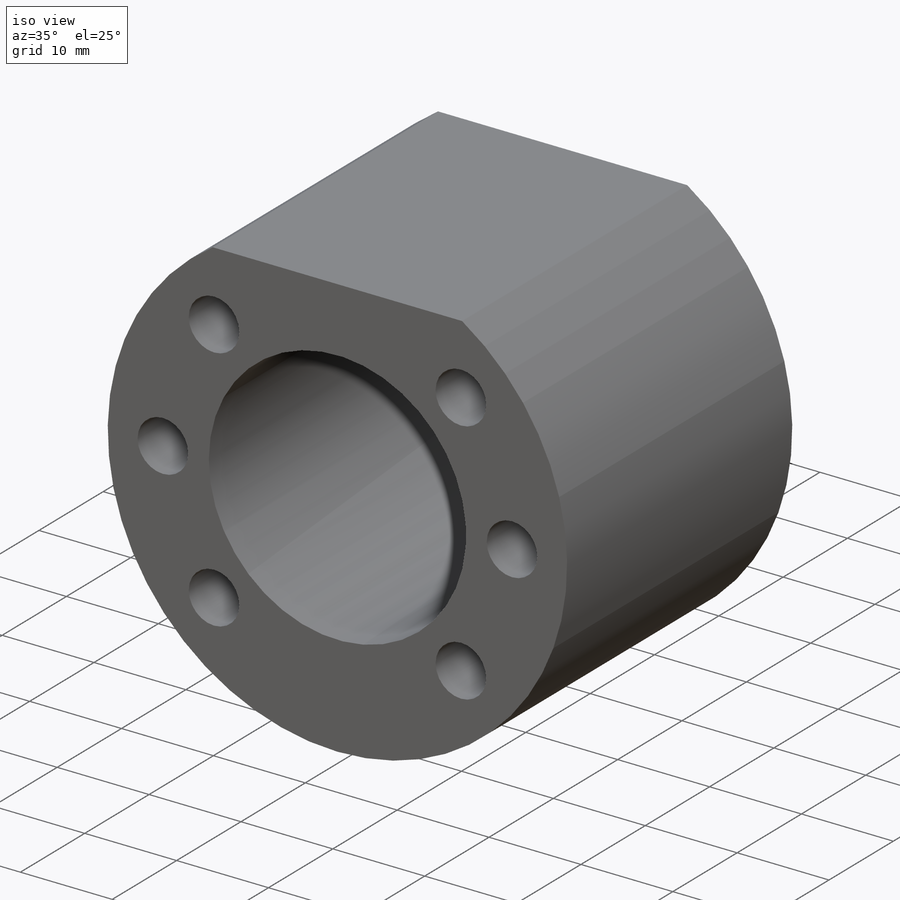
[diagram: iso view]
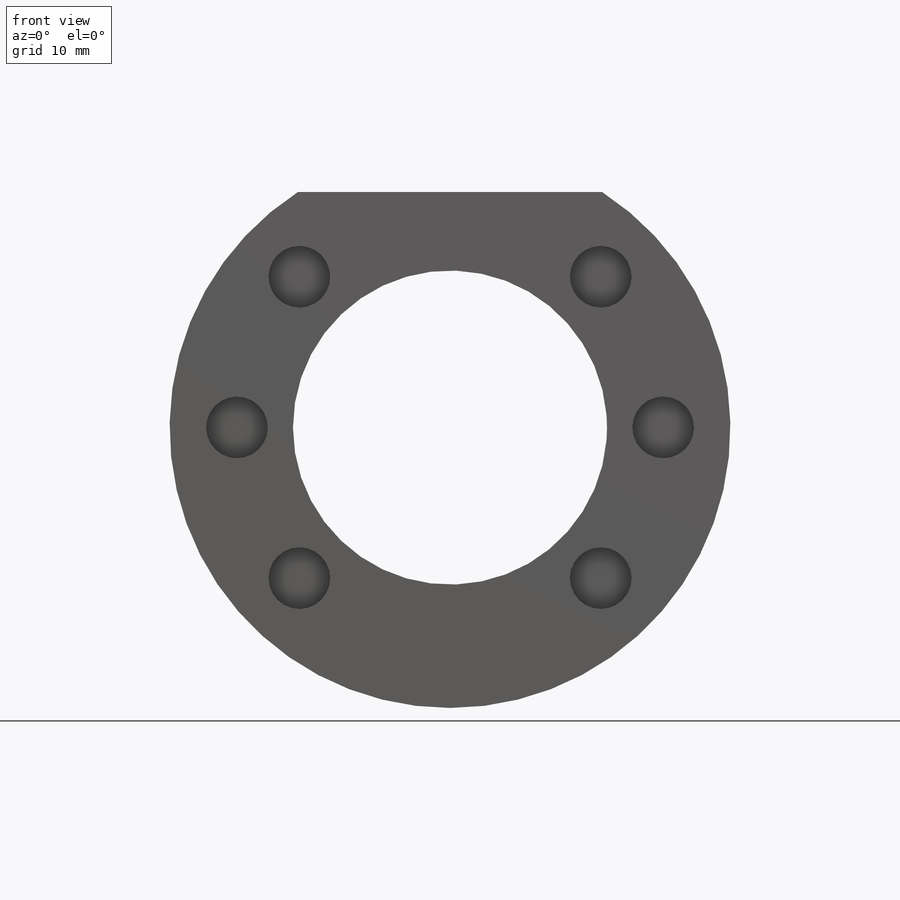
[diagram: front view]
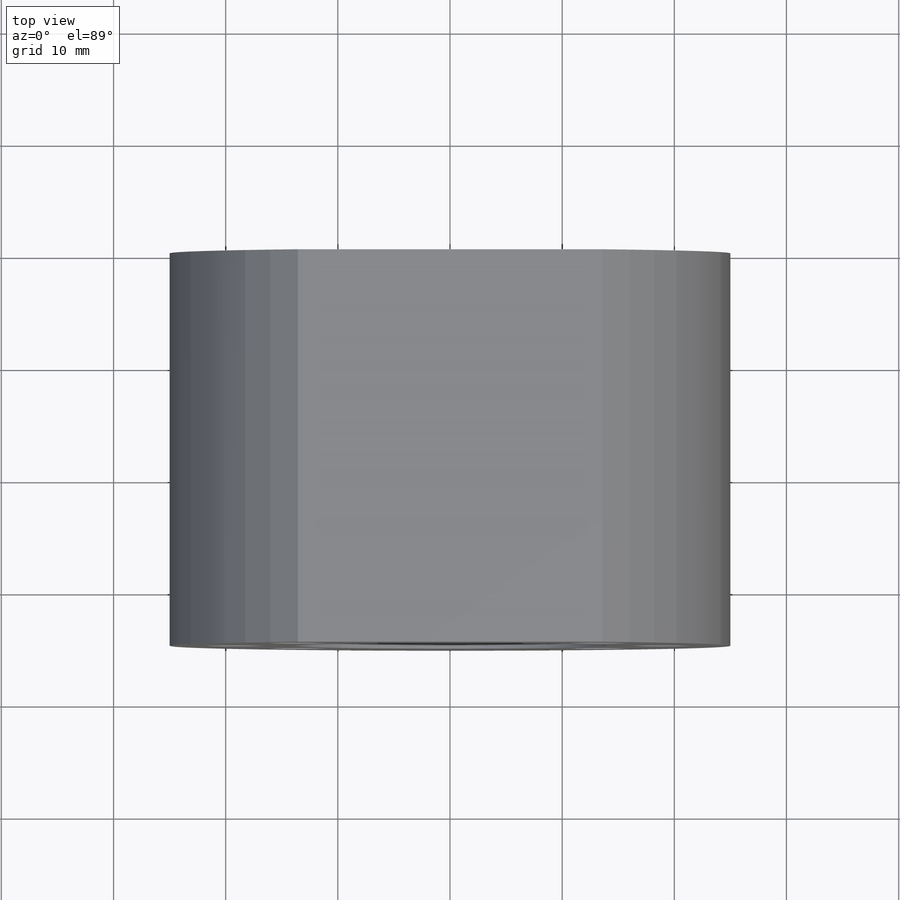
[diagram: top view]
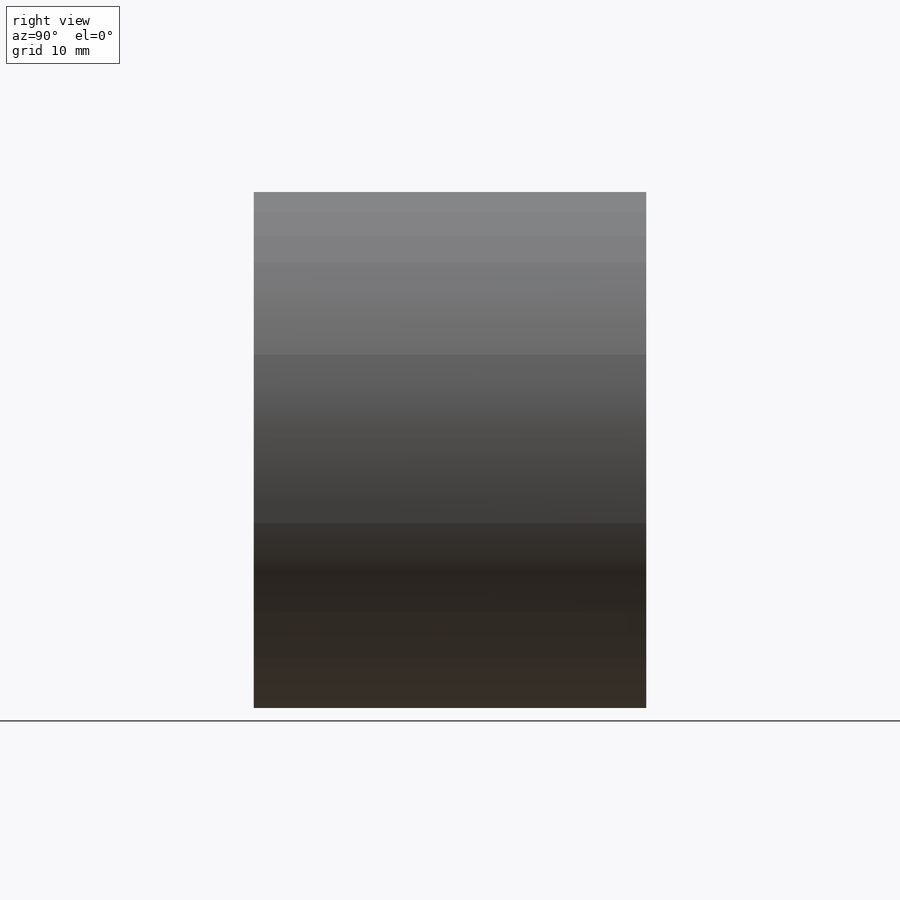
[diagram: right view]
SOLIDWORKS PART (.sldprt)
format: sldprt  version: not decoded by parser v0  size: 185,344 bytes
history: native  units: mm
features: sketch x3, cut_extrude x2, material x1, extrude x1, mirror x1 (+12 scaffold rows collapsed)
feature tree (20):
  scaffold x12  (default folders/planes/origin — collapsed)
  material  "Material <not specified>"
  sketch  "Sketch1"  dims[D1=28.0mm]
  extrude  "Boss-Extrude1"  Depth=35mm
  sketch  "Sketch2"  dims[D1=21.0mm]
  cut_extrude  "Cut-Extrude1"  [1 undecoded]
  sketch  "Sketch3"  dims[c1.D3=5.5mm c1.D4=5.5mm c1.D5=5.5mm c1.D1=~36.905808mm c2.D1=45.0deg c2.D2=~23.909408mm c3.D2=45.0deg c3.D6=19.0mm c3.D7=19.0mm c3.D8=19.0mm]
  cut_extrude  "Cut-Extrude2"  Depth=16mm
  mirror  "Mirror1"
decode coverage: 5 of 7 modeling features carry decoded parameters
note: ~ marks probable driven/reference dimensions
note: 1 parameter value undecoded
note: suppression state not decoded; provenance and decode notes live in map.json
